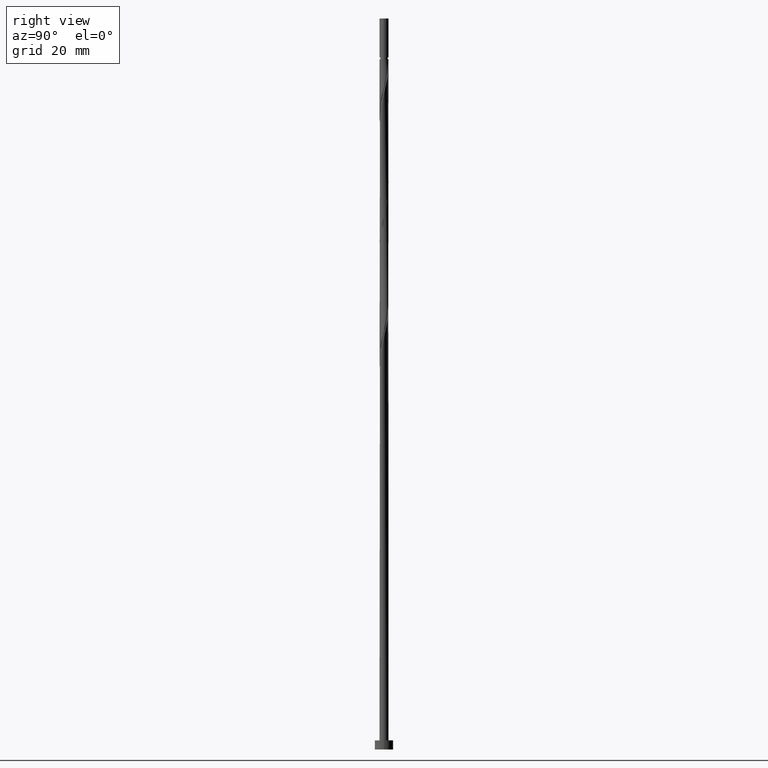
[diagram: clean part render]
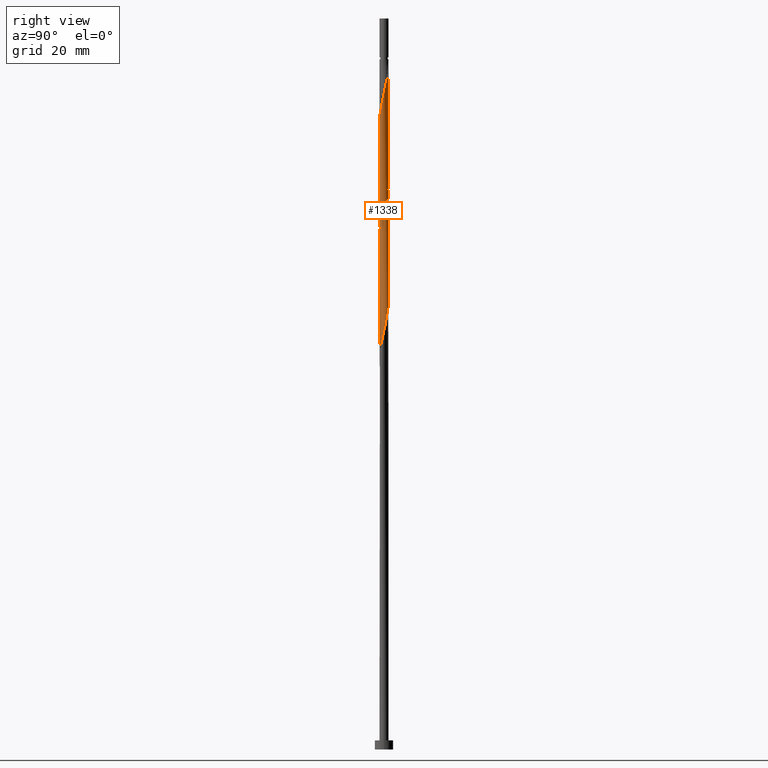
[diagram: same view with one face highlighted and labeled with its STEP entity id]
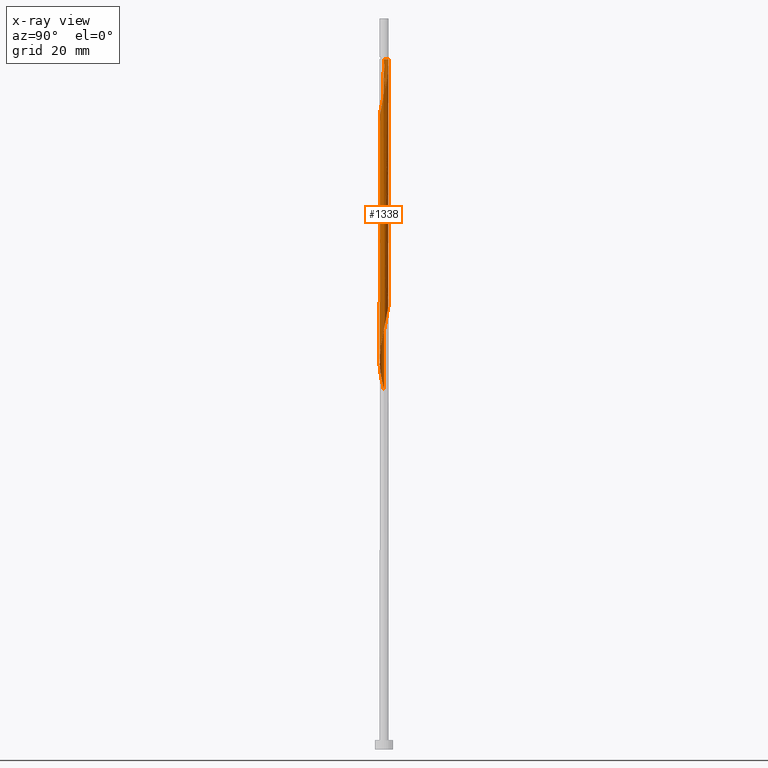
[diagram: x-ray of the same camera — body ghosted, the highlighted face saturated]
A machine part, right view. The second image highlights one B-rep face of the part: STEP entity #1338.
The next image is the same camera in x-ray: the body ghosted, the highlighted face saturated — about 0% of this face is hidden behind the body in this view.
In plain terms, the highlighted cylindrical surface (bore or boss wall) has radius 1 mm, axis along (-0, -0, -1).
Its self-contained STEP definition (entity closure, byte-faithful):
#1 = CARTESIAN_POINT ( 'NONE',  ( 0.8087728116229545572, -0.5881211942954474026, 89.27378838819244322 ) ) ;
#11 = LINE ( 'NONE', #752, #112 ) ;
#12 = CARTESIAN_POINT ( 'NONE',  ( 0.9417047178041579869, -0.3364405214378814457, 90.48590960031366137 ) ) ;
#15 = CARTESIAN_POINT ( 'NONE',  ( -0.9417047178041579869, 0.3364405214378813347, 103.8192429336469900 ) ) ;
#21 = CARTESIAN_POINT ( 'NONE',  ( -1.000000000000001554, 0.02877552652382282458, 131.8193266809569764 ) ) ;
#32 = DIRECTION ( 'NONE',  ( -0.000000000000000000, -0.000000000000000000, -1.000000000000000000 ) ) ;
#33 = CARTESIAN_POINT ( 'NONE',  ( 0.2284171888200493550, -0.9841228509061528129, 86.24348535788945469 ) ) ;
#38 = CARTESIAN_POINT ( 'NONE',  ( -0.9417047178041579869, 0.3364405214378813347, 130.4859096003136756 ) ) ;
#44 = CARTESIAN_POINT ( 'NONE',  ( 1.006613054557666587, -0.08603694682049706222, 143.2131823275863951 ) ) ;
#50 = CARTESIAN_POINT ( 'NONE',  ( 0.6972353404242070951, -0.7168422979034815290, 140.1828792972833639 ) ) ;
#72 = CARTESIAN_POINT ( 'NONE',  ( 1.000000000000001332, 4.748790573360148585E-16, 118.6080913523418587 ) ) ;
#83 = DIRECTION ( 'NONE',  ( -1.000000000000000000, 0.000000000000000000, 0.000000000000000000 ) ) ;
#86 = EDGE_CURVE ( 'NONE', #543, #1331, #830, .T. ) ;
#92 = VERTEX_POINT ( 'NONE', #209 ) ;
#102 = CARTESIAN_POINT ( 'NONE',  ( 0.9417047178041585420, 0.3364405214378812237, 145.0313641457682081 ) ) ;
#106 = VERTEX_POINT ( 'NONE', #722 ) ;
#112 = VECTOR ( 'NONE', #32, 1000.000000000000000 ) ;
#122 = CARTESIAN_POINT ( 'NONE',  ( 0.3399002155364024280, 0.9513884807492757334, 123.8192429336470184 ) ) ;
#128 = CARTESIAN_POINT ( 'NONE',  ( 0.1989974874213285005, 0.9800000000000004263, 97.75863687304094185 ) ) ;
#136 = CARTESIAN_POINT ( 'NONE',  ( -0.9415987439861388530, -0.3661475155560038330, 80.18287929728337815 ) ) ;
#143 = CARTESIAN_POINT ( 'NONE',  ( -0.3624206617887649751, 0.9320146264456348195, 126.8495459639500353 ) ) ;
#152 = CARTESIAN_POINT ( 'NONE',  ( -0.4670345966523050119, -0.8842390432059766825, 83.21318232758639510 ) ) ;
#165 = CARTESIAN_POINT ( 'NONE',  ( -1.000000000000001998, -5.683591867328603583E-16, 130.2425157270733678 ) ) ;
#169 = CARTESIAN_POINT ( 'NONE',  ( -0.8087728116229545572, 0.5881211942954474026, 102.6071217215257860 ) ) ;
#181 = CARTESIAN_POINT ( 'NONE',  ( -0.3624206617887654192, -0.9320146264456353746, 135.3343944487985482 ) ) ;
#190 = CARTESIAN_POINT ( 'NONE',  ( 0.1989974874213282230, -0.9800000000000010925, 137.7586368730409561 ) ) ;
#197 = CARTESIAN_POINT ( 'NONE',  ( 0.7242137496448692868, -0.7044051693801137715, 115.3343944487985198 ) ) ;
#209 = CARTESIAN_POINT ( 'NONE',  ( -1.000000000000001332, -6.805353420090921159E-16, 131.9414246856751447 ) ) ;
#224 = ORIENTED_EDGE ( 'NONE', *, *, #234, .T. ) ;
#228 = CARTESIAN_POINT ( 'NONE',  ( 0.8933318736010409378, 0.4718372192107809782, 145.6374247518288030 ) ) ;
#234 = EDGE_CURVE ( 'NONE', #1406, #1422, #11, .T. ) ;
#241 = CARTESIAN_POINT ( 'NONE',  ( 0.5941689777682082063, 0.8170896056626779647, 122.6071217215258429 ) ) ;
#250 = CARTESIAN_POINT ( 'NONE',  ( 0.3624206617887649751, -0.9320146264456348195, 86.84954596395004955 ) ) ;
#252 = CARTESIAN_POINT ( 'NONE',  ( -0.9900775620072762573, 0.2010438236649818855, 104.4253035397076417 ) ) ;
#260 = CARTESIAN_POINT ( 'NONE',  ( -0.9741058992719023868, -0.2260922311882502533, 79.57681869122275486 ) ) ;
#262 = CARTESIAN_POINT ( 'NONE',  ( 0.08516121475689711340, -0.9963671850784390216, 112.3040914184955028 ) ) ;
#269 = CARTESIAN_POINT ( 'NONE',  ( -1.000000000000001332, -6.805353420090921159E-16, 78.60809135234183032 ) ) ;
#276 = CARTESIAN_POINT ( 'NONE',  ( 0.08516121475689711340, -0.9963671850784390216, 85.63742475182880298 ) ) ;
#280 = CARTESIAN_POINT ( 'NONE',  ( -0.6972353404242070951, -0.7168422979034808629, 108.6677277821318341 ) ) ;
#286 = CARTESIAN_POINT ( 'NONE',  ( 0.9415987439861391861, -0.3661475155560037220, 142.0010611154652054 ) ) ;
#335 = CARTESIAN_POINT ( 'NONE',  ( 0.9983453082824716995, 0.05750343842224230062, 143.8192429336470468 ) ) ;
#338 = ORIENTED_EDGE ( 'NONE', *, *, #1209, .F. ) ;
#351 = CARTESIAN_POINT ( 'NONE',  ( 0.2284171888200494660, 0.9841228509061530350, 149.2737883881923722 ) ) ;
#363 = CARTESIAN_POINT ( 'NONE',  ( -0.2284171888200492717, 0.9841228509061528129, 99.57681869122275486 ) ) ;
#371 = CARTESIAN_POINT ( 'NONE',  ( -0.08516121475689737708, 0.9963671850784390216, 98.97075808516214579 ) ) ;
#380 = CARTESIAN_POINT ( 'NONE',  ( -0.6103189422011747745, 0.7921557856826154653, 128.0616671760712393 ) ) ;
#388 = CARTESIAN_POINT ( 'NONE',  ( 0.4964241347574807617, -0.8799064019851173812, 87.45560657001065863 ) ) ;
#397 = CARTESIAN_POINT ( 'NONE',  ( -0.3624206617887649751, 0.9320146264456348195, 100.1828792972833782 ) ) ;
#405 = CARTESIAN_POINT ( 'NONE',  ( 0.05809475930625430939, -1.008611519250725896, 137.1525762669803612 ) ) ;
#441 = CARTESIAN_POINT ( 'NONE',  ( -1.000000000000000000, 0.000000000000000000, 160.0000000000000000 ) ) ;
#467 = ORIENTED_EDGE ( 'NONE', *, *, #775, .F. ) ;
#498 =( BOUNDED_CURVE ( )  B_SPLINE_CURVE ( 2, ( #1443, #21, #641, #753, #38, #1189, #1310, #1215, #380, #1318, #143, #1106, #1207, #524, #989, #122, #1456, #241, #864, #632, #1095, #615, #970, #1384, #1493 ),
 .UNSPECIFIED., .F., .T. ) 
 B_SPLINE_CURVE_WITH_KNOTS ( ( 3, 2, 2, 2, 2, 2, 2, 2, 2, 2, 2, 2, 3 ),
 ( 0.4295252162417510511, 0.4318181818181818232, 0.4431818181818181768, 0.4545454545454545303, 0.4659090909090908839, 0.4772727272727272929, 0.4886363636363636465, 0.5000000000000000000, 0.5113636363636363535, 0.5227272727272727071, 0.5340909090909090606, 0.5454545454545454142, 0.5545252162417511066 ),
 .UNSPECIFIED. ) 
 CURVE ( )  GEOMETRIC_REPRESENTATION_ITEM ( )  RATIONAL_B_SPLINE_CURVE ( ( 0.9061101570135532413, 0.9072237824201354606, 0.9090909090909131685, 0.8998376744372155178, 0.9090909090909131685, 0.8998376744372155178, 0.9090909090909131685, 0.8998376744372155178, 0.9090909090909131685, 0.8998376744372155178, 0.9090909090909131685, 0.8998376744372155178, 0.9090909090909131685, 0.8998376744372155178, 0.9090909090909131685, 0.8998376744372155178, 0.9090909090909131685, 0.8998376744372155178, 0.9090909090909131685, 0.8998376744372155178, 0.9090909090909131685, 0.8998376744372155178, 0.9090909090909131685, 0.9017048011079931147, 0.9061101570135534633 ) ) 
 REPRESENTATION_ITEM ( '' )  );
#499 = CARTESIAN_POINT ( 'NONE',  ( -0.3399002155364022615, -0.9513884807492757334, 83.81924293364698997 ) ) ;
#506 = CARTESIAN_POINT ( 'NONE',  ( 0.9983453082824708114, -0.05750343842224268920, 91.69803081243485110 ) ) ;
#514 = CARTESIAN_POINT ( 'NONE',  ( 0.000000000000000000, 0.000000000000000000, 151.0919702063742704 ) ) ;
#517 = CARTESIAN_POINT ( 'NONE',  ( -0.8709502235331721964, -0.4913712528501439358, 80.78893990334398723 ) ) ;
#524 = CARTESIAN_POINT ( 'NONE',  ( 0.05809475930625434409, 1.008611519250725230, 125.0313641457682365 ) ) ;
#527 = CARTESIAN_POINT ( 'NONE',  ( -0.3399002155364022615, -0.9513884807492757334, 110.4859096003136756 ) ) ;
#533 = CARTESIAN_POINT ( 'NONE',  ( -1.000000000000001998, -5.683591867328604570E-16, 130.2425157270733678 ) ) ;
#540 = CARTESIAN_POINT ( 'NONE',  ( -1.000000000000001332, -6.805353420090921159E-16, 78.60809135234183032 ) ) ;
#543 = VERTEX_POINT ( 'NONE', #1488 ) ;
#549 = CARTESIAN_POINT ( 'NONE',  ( -0.9417047178041585420, -0.3364405214378813902, 131.6980308124348937 ) ) ;
#582 = CARTESIAN_POINT ( 'NONE',  ( 1.000000000000000000, 1.224646799147353207E-16, 160.0000000000000000 ) ) ;
#583 = CARTESIAN_POINT ( 'NONE',  ( 0.6103189422011745524, -0.7921557856826155763, 114.7283338427378965 ) ) ;
#604 =( BOUNDED_CURVE ( )  B_SPLINE_CURVE ( 2, ( #72, #1322, #741, #1256, #699, #1148, #776, #197, #583, #1286, #979, #1079, #262, #1270, #1159, #527, #991, #1458, #280, #964, #1178, #963, #849, #731, #618, #252, #15, #1472, #169, #1113, #624, #650, #397, #363, #371, #1227, #128, #738, #745, #977, #1435, #1085, #1198, #857, #1091, #1344, #506, #961, #12, #1335, #1, #881, #1449, #388, #250, #33, #276, #983, #1329, #499, #152, #873, #1427, #847, #517, #136, #260, #762, #269 ),
 .UNSPECIFIED., .F., .T. ) 
 B_SPLINE_CURVE_WITH_KNOTS ( ( 3, 2, 2, 2, 2, 2, 2, 2, 2, 2, 2, 2, 2, 2, 2, 2, 2, 2, 2, 2, 2, 2, 2, 2, 2, 2, 2, 2, 2, 2, 2, 2, 2, 2, 3 ),
 ( 0.5545252162417511066, 0.5568181818181817677, 0.5681818181818182323, 0.5795454545454545858, 0.5909090909090909394, 0.6022727272727272929, 0.6136363636363636465, 0.6250000000000000000, 0.6363636363636363535, 0.6477272727272727071, 0.6590909090909090606, 0.6704545454545454142, 0.6818181818181817677, 0.6931818181818182323, 0.7045454545454545858, 0.7159090909090909394, 0.7272727272727272929, 0.7386363636363636465, 0.7500000000000000000, 0.7613636363636363535, 0.7727272727272727071, 0.7840909090909090606, 0.7954545454545454142, 0.8068181818181817677, 0.8181818181818182323, 0.8295454545454545858, 0.8409090909090909394, 0.8522727272727272929, 0.8636363636363636465, 0.8750000000000000000, 0.8863636363636363535, 0.8977272727272727071, 0.9090909090909090606, 0.9204545454545454142, 0.9295252162417509956 ),
 .UNSPECIFIED. ) 
 CURVE ( )  GEOMETRIC_REPRESENTATION_ITEM ( )  RATIONAL_B_SPLINE_CURVE ( ( 0.9061101570135534633, 0.9072237824201355716, 0.9090909090909131685, 0.8998376744372155178, 0.9090909090909131685, 0.8998376744372155178, 0.9090909090909131685, 0.8998376744372155178, 0.9090909090909131685, 0.8998376744372155178, 0.9090909090909131685, 0.8998376744372155178, 0.9090909090909131685, 0.8998376744372155178, 0.9090909090909131685, 0.8998376744372155178, 0.9090909090909131685, 0.8998376744372155178, 0.9090909090909131685, 0.8998376744372155178, 0.9090909090909131685, 0.8998376744372155178, 0.9090909090909131685, 0.8998376744372155178, 0.9090909090909131685, 0.8998376744372155178, 0.9090909090909131685, 0.8998376744372155178, 0.9090909090909131685, 0.8998376744372155178, 0.9090909090909131685, 0.8998376744372155178, 0.9090909090909131685, 0.8998376744372155178, 0.9090909090909131685, 0.8998376744372155178, 0.9090909090909131685, 0.8998376744372155178, 0.9090909090909131685, 0.8998376744372155178, 0.9090909090909131685, 0.8998376744372155178, 0.9090909090909131685, 0.8998376744372155178, 0.9090909090909131685, 0.8998376744372155178, 0.9090909090909131685, 0.8998376744372155178, 0.9090909090909131685, 0.8998376744372155178, 0.9090909090909131685, 0.8998376744372155178, 0.9090909090909131685, 0.8998376744372155178, 0.9090909090909131685, 0.8998376744372155178, 0.9090909090909131685, 0.8998376744372155178, 0.9090909090909131685, 0.8998376744372155178, 0.9090909090909131685, 0.8998376744372155178, 0.9090909090909131685, 0.8998376744372155178, 0.9090909090909131685, 0.8998376744372155178, 0.9090909090909131685, 0.9017048011079932257, 0.9061101570135532413 ) ) 
 REPRESENTATION_ITEM ( '' )  );
#615 = CARTESIAN_POINT ( 'NONE',  ( 0.9415987439861388530, 0.3661475155560033889, 120.1828792972833639 ) ) ;
#618 = CARTESIAN_POINT ( 'NONE',  ( -0.9983453082824708114, 0.05750343842224257124, 105.0313641457682223 ) ) ;
#624 = CARTESIAN_POINT ( 'NONE',  ( -0.6103189422011747745, 0.7921557856826154653, 101.3950005094045679 ) ) ;
#632 = CARTESIAN_POINT ( 'NONE',  ( 0.8003017030802059839, 0.6165949901442843162, 121.3950005094045963 ) ) ;
#641 = CARTESIAN_POINT ( 'NONE',  ( -0.9983453082824708114, 0.05750343842224257124, 131.6980308124348653 ) ) ;
#645 = LINE ( 'NONE', #441, #1249 ) ;
#650 = CARTESIAN_POINT ( 'NONE',  ( -0.4964241347574808727, 0.8799064019851173812, 100.7889399033439730 ) ) ;
#657 = CARTESIAN_POINT ( 'NONE',  ( 0.9741058992719027199, -0.2260922311882504754, 142.6071217215258002 ) ) ;
#665 = CARTESIAN_POINT ( 'NONE',  ( -0.9900775620072765904, -0.2010438236649818300, 131.0919702063742989 ) ) ;
#675 = CARTESIAN_POINT ( 'NONE',  ( -1.000000000000002220, -0.02877552652382017739, 130.3646137317915930 ) ) ;
#682 = CARTESIAN_POINT ( 'NONE',  ( 0.4670345966523050119, -0.8842390432059774596, 138.9707580851621742 ) ) ;
#689 = CARTESIAN_POINT ( 'NONE',  ( -0.7242137496448691758, -0.7044051693801139935, 133.5162126306167067 ) ) ;
#699 = CARTESIAN_POINT ( 'NONE',  ( 0.9417047178041579869, -0.3364405214378814457, 117.1525762669803328 ) ) ;
#722 = CARTESIAN_POINT ( 'NONE',  ( 1.000000000000001332, 4.748790573360148585E-16, 118.6080913523418445 ) ) ;
#731 = CARTESIAN_POINT ( 'NONE',  ( -1.006613054557666365, -0.08603694682049695119, 105.6374247518288314 ) ) ;
#736 = ORIENTED_EDGE ( 'NONE', *, *, #1280, .F. ) ;
#738 = CARTESIAN_POINT ( 'NONE',  ( 0.3399002155364024280, 0.9513884807492757334, 97.15257626698034699 ) ) ;
#741 = CARTESIAN_POINT ( 'NONE',  ( 0.9983453082824708114, -0.05750343842224268920, 118.3646974791015367 ) ) ;
#745 = CARTESIAN_POINT ( 'NONE',  ( 0.4670345966523051229, 0.8842390432059766825, 96.54651566091973791 ) ) ;
#752 = CARTESIAN_POINT ( 'NONE',  ( -1.000000000000000000, 0.000000000000000000, 160.0000000000000000 ) ) ;
#753 = CARTESIAN_POINT ( 'NONE',  ( -0.9900775620072762573, 0.2010438236649818855, 131.0919702063742989 ) ) ;
#762 = CARTESIAN_POINT ( 'NONE',  ( -1.000000000000001332, -0.1145289273851226586, 79.09405130531314398 ) ) ;
#768 = DIRECTION ( 'NONE',  ( -0.000000000000000000, -0.000000000000000000, -1.000000000000000000 ) ) ;
#775 = EDGE_CURVE ( 'NONE', #954, #106, #923, .T. ) ;
#776 = CARTESIAN_POINT ( 'NONE',  ( 0.8087728116229545572, -0.5881211942954474026, 115.9404550548591004 ) ) ;
#791 = CARTESIAN_POINT ( 'NONE',  ( -0.9983453082824716995, -0.05750343842224243940, 130.4859096003136756 ) ) ;
#802 = CARTESIAN_POINT ( 'NONE',  ( -0.2284171888200492995, -0.9841228509061530350, 135.9404550548591715 ) ) ;
#808 = DIRECTION ( 'NONE',  ( -0.000000000000000000, -0.000000000000000000, -1.000000000000000000 ) ) ;
#813 = CARTESIAN_POINT ( 'NONE',  ( 0.9900775620072765904, 0.2010438236649816635, 144.4253035397075848 ) ) ;
#819 = CARTESIAN_POINT ( 'NONE',  ( 0.08516121475689758524, 0.9963671850784392436, 149.8798489942530523 ) ) ;
#830 = CIRCLE ( 'NONE', #1267, 0.9999999999999935607 ) ;
#847 = CARTESIAN_POINT ( 'NONE',  ( -0.8003017030802062060, -0.6165949901442839831, 81.39500050940458209 ) ) ;
#849 = CARTESIAN_POINT ( 'NONE',  ( -0.9741058992719023868, -0.2260922311882502533, 106.2434853578894405 ) ) ;
#857 = CARTESIAN_POINT ( 'NONE',  ( 0.9415987439861388530, 0.3661475155560033889, 93.51621263061669254 ) ) ;
#864 = CARTESIAN_POINT ( 'NONE',  ( 0.6972353404242066510, 0.7168422979034811959, 122.0010611154651770 ) ) ;
#873 = CARTESIAN_POINT ( 'NONE',  ( -0.5941689777682080953, -0.8170896056626780757, 82.60712172152580024 ) ) ;
#881 = CARTESIAN_POINT ( 'NONE',  ( 0.7242137496448692868, -0.7044051693801137715, 88.66772778213184836 ) ) ;
#891 = CARTESIAN_POINT ( 'NONE',  ( 0.8003017030802062060, -0.6165949901442845382, 140.7889399033439872 ) ) ;
#907 = CARTESIAN_POINT ( 'NONE',  ( 0.000000000000000000, 0.000000000000000000, 160.0000000000000000 ) ) ;
#920 = CARTESIAN_POINT ( 'NONE',  ( -0.8087728116229551123, -0.5881211942954477356, 132.9101520245560835 ) ) ;
#923 = LINE ( 'NONE', #582, #1051 ) ;
#954 = VERTEX_POINT ( 'NONE', #1539 ) ;
#961 = CARTESIAN_POINT ( 'NONE',  ( 0.9900775620072762573, -0.2010438236649819965, 91.09197020637429887 ) ) ;
#963 = CARTESIAN_POINT ( 'NONE',  ( -0.9415987439861388530, -0.3661475155560038330, 106.8495459639500638 ) ) ;
#964 = CARTESIAN_POINT ( 'NONE',  ( -0.8003017030802062060, -0.6165949901442839831, 108.0616671760712535 ) ) ;
#970 = CARTESIAN_POINT ( 'NONE',  ( 0.9741058992719023868, 0.2260922311882499480, 119.5768186912227549 ) ) ;
#977 = CARTESIAN_POINT ( 'NONE',  ( 0.5941689777682082063, 0.8170896056626779647, 95.94045505485912884 ) ) ;
#979 = CARTESIAN_POINT ( 'NONE',  ( 0.3624206617887649751, -0.9320146264456348195, 113.5162126306167067 ) ) ;
#983 = CARTESIAN_POINT ( 'NONE',  ( -0.05809475930625460083, -1.008611519250725452, 85.03136414576823654 ) ) ;
#989 = CARTESIAN_POINT ( 'NONE',  ( 0.1989974874213285005, 0.9800000000000004263, 124.4253035397076133 ) ) ;
#991 = CARTESIAN_POINT ( 'NONE',  ( -0.4670345966523050119, -0.8842390432059766825, 109.8798489942530381 ) ) ;
#998 = CARTESIAN_POINT ( 'NONE',  ( -0.6103189422011752185, -0.7921557856826156874, 134.1222732366773585 ) ) ;
#1000 = ORIENTED_EDGE ( 'NONE', *, *, #1254, .F. ) ;
#1004 = DIRECTION ( 'NONE',  ( -1.000000000000000000, 0.000000000000000000, 0.000000000000000000 ) ) ;
#1011 = CARTESIAN_POINT ( 'NONE',  ( 0.5941689777682083173, -0.8170896056626782977, 139.5768186912227691 ) ) ;
#1033 = CARTESIAN_POINT ( 'NONE',  ( 0.4964241347574807617, 0.8799064019851177143, 148.0616671760712109 ) ) ;
#1040 = CARTESIAN_POINT ( 'NONE',  ( 0.3624206617887651416, 0.9320146264456353746, 148.6677277821318626 ) ) ;
#1051 = VECTOR ( 'NONE', #808, 1000.000000000000000 ) ;
#1059 = ORIENTED_EDGE ( 'NONE', *, *, #1502, .F. ) ;
#1064 = CARTESIAN_POINT ( 'NONE',  ( 0.6103189422011752185, 0.7921557856826161315, 147.4556065700107297 ) ) ;
#1079 = CARTESIAN_POINT ( 'NONE',  ( 0.2284171888200493550, -0.9841228509061528129, 112.9101520245561119 ) ) ;
#1085 = CARTESIAN_POINT ( 'NONE',  ( 0.8003017030802059839, 0.6165949901442843162, 94.72833384273791069 ) ) ;
#1091 = CARTESIAN_POINT ( 'NONE',  ( 0.9741058992719023868, 0.2260922311882499480, 92.91015202455608346 ) ) ;
#1095 = CARTESIAN_POINT ( 'NONE',  ( 0.8709502235331720854, 0.4913712528501442689, 120.7889399033439446 ) ) ;
#1106 = CARTESIAN_POINT ( 'NONE',  ( -0.2284171888200492717, 0.9841228509061528129, 126.2434853578894547 ) ) ;
#1113 = CARTESIAN_POINT ( 'NONE',  ( -0.7242137496448689538, 0.7044051693801141045, 102.0010611154652054 ) ) ;
#1119 = CYLINDRICAL_SURFACE ( 'NONE', #1537, 1.000000000000000000 ) ;
#1134 = CARTESIAN_POINT ( 'NONE',  ( -0.4964241347574810947, -0.8799064019851177143, 134.7283338427379533 ) ) ;
#1142 = DIRECTION ( 'NONE',  ( -0.000000000000000000, -0.000000000000000000, -1.000000000000000000 ) ) ;
#1148 = CARTESIAN_POINT ( 'NONE',  ( 0.8933318736010404937, -0.4718372192107812002, 116.5465156609197663 ) ) ;
#1159 = CARTESIAN_POINT ( 'NONE',  ( -0.1989974874213283618, -0.9800000000000004263, 111.0919702063742562 ) ) ;
#1178 = CARTESIAN_POINT ( 'NONE',  ( -0.8709502235331721964, -0.4913712528501439358, 107.4556065700105876 ) ) ;
#1189 = CARTESIAN_POINT ( 'NONE',  ( -0.8933318736010404937, 0.4718372192107812002, 129.8798489942530807 ) ) ;
#1198 = CARTESIAN_POINT ( 'NONE',  ( 0.8709502235331720854, 0.4913712528501442689, 94.12227323667731582 ) ) ;
#1207 = CARTESIAN_POINT ( 'NONE',  ( -0.08516121475689737708, 0.9963671850784390216, 125.6374247518288172 ) ) ;
#1209 = EDGE_CURVE ( 'NONE', #543, #92, #645, .T. ) ;
#1215 = CARTESIAN_POINT ( 'NONE',  ( -0.7242137496448689538, 0.7044051693801141045, 128.6677277821318626 ) ) ;
#1227 = CARTESIAN_POINT ( 'NONE',  ( 0.05809475930625434409, 1.008611519250725230, 98.36469747910155093 ) ) ;
#1235 = CARTESIAN_POINT ( 'NONE',  ( 0.3399002155364020950, -0.9513884807492761775, 138.3646974791015509 ) ) ;
#1243 = FACE_OUTER_BOUND ( 'NONE', #1426, .T. ) ;
#1249 = VECTOR ( 'NONE', #1265, 1000.000000000000000 ) ;
#1254 = EDGE_CURVE ( 'NONE', #106, #1422, #604, .T. ) ;
#1256 = CARTESIAN_POINT ( 'NONE',  ( 0.9900775620072762573, -0.2010438236649819965, 117.7586368730409703 ) ) ;
#1259 = CARTESIAN_POINT ( 'NONE',  ( -0.8933318736010408267, -0.4718372192107813112, 132.3040914184954886 ) ) ;
#1262 = ORIENTED_EDGE ( 'NONE', *, *, #86, .T. ) ;
#1265 = DIRECTION ( 'NONE',  ( -0.000000000000000000, -0.000000000000000000, -1.000000000000000000 ) ) ;
#1267 = AXIS2_PLACEMENT_3D ( 'NONE', #514, #768, #83 ) ;
#1268 = CARTESIAN_POINT ( 'NONE',  ( -0.08516121475689751585, -0.9963671850784392436, 136.5465156609197095 ) ) ;
#1270 = CARTESIAN_POINT ( 'NONE',  ( -0.05809475930625460083, -1.008611519250725452, 111.6980308124348937 ) ) ;
#1280 = EDGE_CURVE ( 'NONE', #92, #106, #498, .T. ) ;
#1281 = CARTESIAN_POINT ( 'NONE',  ( 0.8087728116229552233, 0.5881211942954475136, 146.2434853578894831 ) ) ;
#1286 = CARTESIAN_POINT ( 'NONE',  ( 0.4964241347574807617, -0.8799064019851173812, 114.1222732366773442 ) ) ;
#1303 = CARTESIAN_POINT ( 'NONE',  ( 0.7242137496448697309, 0.7044051693801136604, 146.8495459639500496 ) ) ;
#1310 = CARTESIAN_POINT ( 'NONE',  ( -0.8087728116229545572, 0.5881211942954474026, 129.2737883881924574 ) ) ;
#1318 = CARTESIAN_POINT ( 'NONE',  ( -0.4964241347574808727, 0.8799064019851173812, 127.4556065700106728 ) ) ;
#1322 = CARTESIAN_POINT ( 'NONE',  ( 1.000000000000001332, -0.02877552652382438236, 118.4859933476236478 ) ) ;
#1329 = CARTESIAN_POINT ( 'NONE',  ( -0.1989974874213283618, -0.9800000000000004263, 84.42530353970758483 ) ) ;
#1331 = VERTEX_POINT ( 'NONE', #1469 ) ;
#1335 = CARTESIAN_POINT ( 'NONE',  ( 0.8933318736010404937, -0.4718372192107812002, 89.87984899425308072 ) ) ;
#1338 = ADVANCED_FACE ( 'NONE', ( #1243 ), #1119, .T. ) ;
#1344 = CARTESIAN_POINT ( 'NONE',  ( 1.006613054557666365, 0.08603694682049661813, 92.30409141849550281 ) ) ;
#1353 = CARTESIAN_POINT ( 'NONE',  ( 0.8709502235331724185, -0.4913712528501443799, 141.3950005094045821 ) ) ;
#1384 = CARTESIAN_POINT ( 'NONE',  ( 1.000000000000001332, 0.1145289273851209516, 119.0940513053131298 ) ) ;
#1396 = CARTESIAN_POINT ( 'NONE',  ( -0.05809475930625557921, 1.008611519250726118, 150.4859096003136756 ) ) ;
#1404 = CARTESIAN_POINT ( 'NONE',  ( -0.1989974874213557565, 0.9800000000002764278, 151.0919702063742136 ) ) ;
#1406 = VERTEX_POINT ( 'NONE', #533 ) ;
#1422 = VERTEX_POINT ( 'NONE', #540 ) ;
#1426 = EDGE_LOOP ( 'NONE', ( #338, #1262, #1059, #224, #1000, #467, #1457, #736 ) ) ;
#1427 = CARTESIAN_POINT ( 'NONE',  ( -0.6972353404242070951, -0.7168422979034808629, 82.00106111546514853 ) ) ;
#1435 = CARTESIAN_POINT ( 'NONE',  ( 0.6972353404242066510, 0.7168422979034811959, 95.33439444879850555 ) ) ;
#1443 = CARTESIAN_POINT ( 'NONE',  ( -1.000000000000001332, -6.805353420090921159E-16, 131.9414246856751447 ) ) ;
#1449 = CARTESIAN_POINT ( 'NONE',  ( 0.6103189422011745524, -0.7921557856826155763, 88.06166717607123928 ) ) ;
#1456 = CARTESIAN_POINT ( 'NONE',  ( 0.4670345966523051229, 0.8842390432059766825, 123.2131823275864093 ) ) ;
#1457 = ORIENTED_EDGE ( 'NONE', *, *, #775, .T. ) ;
#1458 = CARTESIAN_POINT ( 'NONE',  ( -0.5941689777682080953, -0.8170896056626780757, 109.2737883881924859 ) ) ;
#1469 = CARTESIAN_POINT ( 'NONE',  ( -0.1989974874213557565, 0.9800000000002764278, 151.0919702063742136 ) ) ;
#1472 = CARTESIAN_POINT ( 'NONE',  ( -0.8933318736010404937, 0.4718372192107812002, 103.2131823275864235 ) ) ;
#1488 = CARTESIAN_POINT ( 'NONE',  ( -0.9999999999999935607, 0.000000000000000000, 151.0919702063742704 ) ) ;
#1493 = CARTESIAN_POINT ( 'NONE',  ( 1.000000000000001332, 4.748790573360148585E-16, 118.6080913523418587 ) ) ;
#1502 = EDGE_CURVE ( 'NONE', #1406, #1331, #1541, .T. ) ;
#1537 = AXIS2_PLACEMENT_3D ( 'NONE', #907, #1142, #1004 ) ;
#1539 = CARTESIAN_POINT ( 'NONE',  ( 1.000000000000000000, 1.224646799147353207E-16, 151.0919702063742704 ) ) ;
#1541 =( BOUNDED_CURVE ( )  B_SPLINE_CURVE ( 2, ( #165, #675, #791, #665, #549, #1259, #920, #689, #998, #1134, #181, #802, #1268, #405, #190, #1235, #682, #1011, #50, #891, #1353, #286, #657, #44, #335, #813, #102, #228, #1281, #1303, #1064, #1033, #1040, #351, #819, #1396, #1404 ),
 .UNSPECIFIED., .F., .T. ) 
 B_SPLINE_CURVE_WITH_KNOTS ( ( 3, 2, 2, 2, 2, 2, 2, 2, 2, 2, 2, 2, 2, 2, 2, 2, 2, 2, 3 ),
 ( 0.5545252162417508845, 0.5568181818181818787, 0.5681818181818181213, 0.5795454545454545858, 0.5909090909090908283, 0.6022727272727272929, 0.6136363636363636465, 0.6250000000000000000, 0.6363636363636363535, 0.6477272727272727071, 0.6590909090909091717, 0.6704545454545455252, 0.6818181818181819898, 0.6931818181818182323, 0.7045454545454546968, 0.7159090909090909394, 0.7272727272727274039, 0.7386363636363637575, 0.7500000000000001110 ),
 .UNSPECIFIED. ) 
 CURVE ( )  GEOMETRIC_REPRESENTATION_ITEM ( )  RATIONAL_B_SPLINE_CURVE ( ( 0.9061101570135652317, 0.9072237824201474510, 0.9090909090909253809, 0.8998376744372276193, 0.9090909090909253809, 0.8998376744372276193, 0.9090909090909253809, 0.8998376744372276193, 0.9090909090909253809, 0.8998376744372276193, 0.9090909090909253809, 0.8998376744372276193, 0.9090909090909253809, 0.8998376744372276193, 0.9090909090909253809, 0.8998376744372276193, 0.9090909090909253809, 0.8998376744372276193, 0.9090909090909253809, 0.8998376744372276193, 0.9090909090909253809, 0.8998376744372276193, 0.9090909090909253809, 0.8998376744372276193, 0.9090909090909253809, 0.8998376744372276193, 0.9090909090909253809, 0.8998376744372276193, 0.9090909090909253809, 0.8998376744372276193, 0.9090909090909253809, 0.8998376744372276193, 0.9090909090909253809, 0.8998376744372276193, 0.9090909090909253809, 0.8998376744372275082, 0.9090909090909254919 ) ) 
 REPRESENTATION_ITEM ( '' )  );